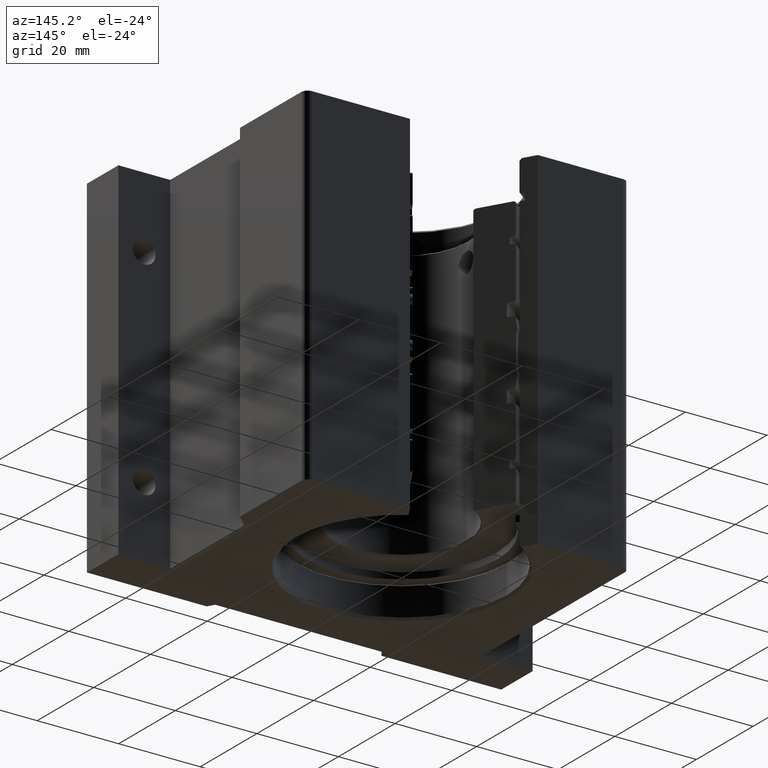
[diagram: clean part render]
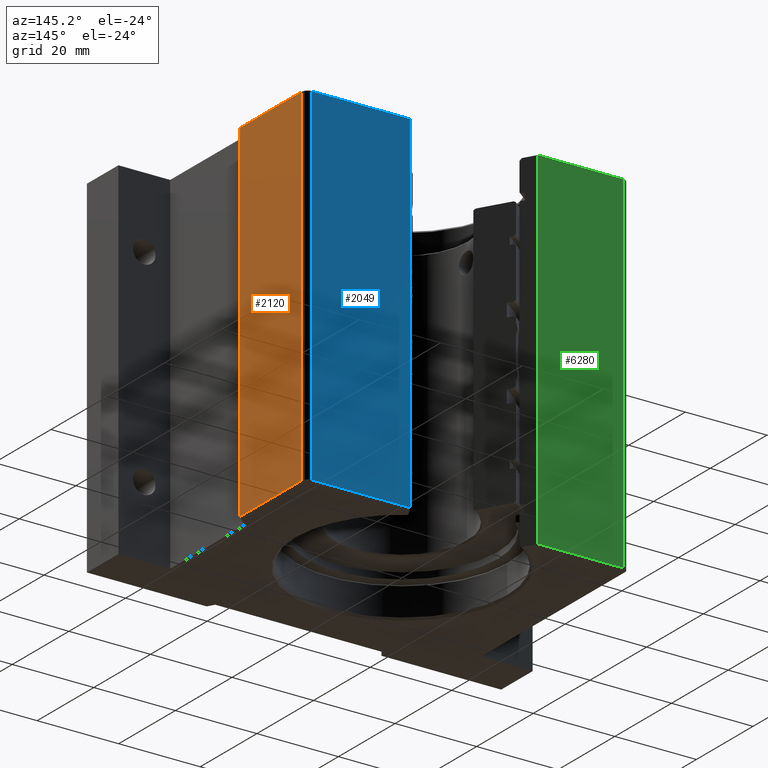
[diagram: same view with three faces highlighted in distinct colors, each labeled with its STEP entity id]
A machine part, auxiliary view with three faces highlighted in distinct colors.
Their STEP definitions:

[orange] entity #2120 — the highlighted planar face has unit normal (1, 0, 0).
#171 = VECTOR ( 'NONE', #6145, 39.37007874015748143 ) ;
#202 = LINE ( 'NONE', #1218, #3138 ) ;
#257 = EDGE_LOOP ( 'NONE', ( #3080, #2575, #5518, #3503 ) ) ;
#297 = DIRECTION ( 'NONE',  ( -0.000000000000000000, 1.000000000000000000, -0.000000000000000000 ) ) ;
#440 = CARTESIAN_POINT ( 'NONE',  ( 1.624999999999999778, 1.000000000000000000, -2.732006582075958256 ) ) ;
#593 = FACE_OUTER_BOUND ( 'NONE', #257, .T. ) ;
#625 = CARTESIAN_POINT ( 'NONE',  ( 1.624999999999999778, 0.08800000000000025857, 1.687500000000000000 ) ) ;
#741 = CARTESIAN_POINT ( 'NONE',  ( 1.624999999999999778, 0.9399999999999999467, 1.687500000000000000 ) ) ;
#1090 = VERTEX_POINT ( 'NONE', #625 ) ;
#1218 = CARTESIAN_POINT ( 'NONE',  ( 1.624999999999999778, 0.9399999999999999467, 1.687500000000000000 ) ) ;
#1596 = AXIS2_PLACEMENT_3D ( 'NONE', #440, #2825, #6119 ) ;
#1746 = VERTEX_POINT ( 'NONE', #3309 ) ;
#1843 = EDGE_CURVE ( 'NONE', #1746, #2697, #6996, .T. ) ;
#1862 = DIRECTION ( 'NONE',  ( 0.000000000000000000, -1.000000000000000000, 0.000000000000000000 ) ) ;
#1945 = VECTOR ( 'NONE', #1862, 39.37007874015748143 ) ;
#2120 = ADVANCED_FACE ( 'NONE', ( #593 ), #2276, .T. ) ;
#2268 = LINE ( 'NONE', #4514, #171 ) ;
#2276 = PLANE ( 'NONE',  #1596 ) ;
#2575 = ORIENTED_EDGE ( 'NONE', *, *, #2586, .T. ) ;
#2586 = EDGE_CURVE ( 'NONE', #1746, #4435, #202, .T. ) ;
#2697 = VERTEX_POINT ( 'NONE', #2889 ) ;
#2825 = DIRECTION ( 'NONE',  ( 1.000000000000000000, 0.000000000000000000, -0.000000000000000000 ) ) ;
#2841 = EDGE_CURVE ( 'NONE', #2697, #1090, #2268, .T. ) ;
#2889 = CARTESIAN_POINT ( 'NONE',  ( 1.624999999999999778, 0.08800000000000025857, -1.687500000000000000 ) ) ;
#2954 = DIRECTION ( 'NONE',  ( 0.000000000000000000, 0.000000000000000000, 1.000000000000000000 ) ) ;
#3080 = ORIENTED_EDGE ( 'NONE', *, *, #1843, .F. ) ;
#3138 = VECTOR ( 'NONE', #2954, 39.37007874015748143 ) ;
#3309 = CARTESIAN_POINT ( 'NONE',  ( 1.624999999999999778, 0.9399999999999999467, -1.687500000000000000 ) ) ;
#3503 = ORIENTED_EDGE ( 'NONE', *, *, #2841, .F. ) ;
#4190 = VECTOR ( 'NONE', #297, 39.37007874015748143 ) ;
#4435 = VERTEX_POINT ( 'NONE', #741 ) ;
#4514 = CARTESIAN_POINT ( 'NONE',  ( 1.624999999999999778, 0.08800000000000025857, -2.732006582075958256 ) ) ;
#5375 = LINE ( 'NONE', #5975, #4190 ) ;
#5518 = ORIENTED_EDGE ( 'NONE', *, *, #6847, .F. ) ;
#5975 = CARTESIAN_POINT ( 'NONE',  ( 1.624999999999999778, 1.000000000000000000, 1.687500000000000000 ) ) ;
#6119 = DIRECTION ( 'NONE',  ( -0.000000000000000000, 0.000000000000000000, -1.000000000000000000 ) ) ;
#6145 = DIRECTION ( 'NONE',  ( 0.000000000000000000, 0.000000000000000000, 1.000000000000000000 ) ) ;
#6399 = CARTESIAN_POINT ( 'NONE',  ( 1.624999999999999778, 1.000000000000000000, -1.687500000000000000 ) ) ;
#6847 = EDGE_CURVE ( 'NONE', #1090, #4435, #5375, .T. ) ;
#6996 = LINE ( 'NONE', #6399, #1945 ) ;

[blue] entity #2049 — the highlighted planar face has unit normal (0, -1, 0).
#127 = EDGE_CURVE ( 'NONE', #4089, #6066, #300, .T. ) ;
#300 = LINE ( 'NONE', #934, #3038 ) ;
#395 = ORIENTED_EDGE ( 'NONE', *, *, #127, .T. ) ;
#501 = CARTESIAN_POINT ( 'NONE',  ( 1.564999999999999725, 1.000000000000000000, -1.687500000000000000 ) ) ;
#776 = CARTESIAN_POINT ( 'NONE',  ( -2.099224542610511072E-16, 0.9999999999999996669, 1.687500000000000000 ) ) ;
#934 = CARTESIAN_POINT ( 'NONE',  ( 0.6177782725980928147, 1.000000000000000000, -1.687501968503936967 ) ) ;
#1031 = CARTESIAN_POINT ( 'NONE',  ( 0.6177782725980928147, 1.000000000000000000, -1.687500000000000000 ) ) ;
#1156 = VECTOR ( 'NONE', #3625, 39.37007874015748143 ) ;
#1345 = DIRECTION ( 'NONE',  ( -0.000000000000000000, -0.000000000000000000, -1.000000000000000000 ) ) ;
#1895 = LINE ( 'NONE', #776, #1156 ) ;
#2046 = VERTEX_POINT ( 'NONE', #5118 ) ;
#2049 = ADVANCED_FACE ( 'NONE', ( #2857 ), #5593, .F. ) ;
#2608 = DIRECTION ( 'NONE',  ( -0.000000000000000000, -0.000000000000000000, 1.000000000000000000 ) ) ;
#2857 = FACE_OUTER_BOUND ( 'NONE', #5301, .T. ) ;
#3038 = VECTOR ( 'NONE', #2608, 39.37007874015748143 ) ;
#3121 = EDGE_CURVE ( 'NONE', #4089, #7184, #3238, .T. ) ;
#3238 = LINE ( 'NONE', #7094, #4583 ) ;
#3261 = DIRECTION ( 'NONE',  ( 2.099224542610511318E-16, -1.000000000000000000, 0.000000000000000000 ) ) ;
#3440 = EDGE_CURVE ( 'NONE', #6066, #2046, #1895, .T. ) ;
#3624 = ORIENTED_EDGE ( 'NONE', *, *, #6322, .T. ) ;
#3625 = DIRECTION ( 'NONE',  ( 1.000000000000000000, 2.099224542610511565E-16, 0.000000000000000000 ) ) ;
#3918 = CARTESIAN_POINT ( 'NONE',  ( 0.6177782725980928147, 1.000000000000000000, 1.687500000000000000 ) ) ;
#3931 = DIRECTION ( 'NONE',  ( 1.000000000000000000, 2.099224542610511318E-16, 0.000000000000000000 ) ) ;
#3991 = LINE ( 'NONE', #4718, #6182 ) ;
#4089 = VERTEX_POINT ( 'NONE', #1031 ) ;
#4379 = ORIENTED_EDGE ( 'NONE', *, *, #3440, .T. ) ;
#4382 = DIRECTION ( 'NONE',  ( 1.000000000000000000, 2.099224542610511565E-16, 0.000000000000000000 ) ) ;
#4583 = VECTOR ( 'NONE', #4382, 39.37007874015748143 ) ;
#4718 = CARTESIAN_POINT ( 'NONE',  ( 1.564999999999999725, 1.000000000000000000, -1.687500000000000000 ) ) ;
#5049 = CARTESIAN_POINT ( 'NONE',  ( -2.099224542610511072E-16, 0.9999999999999996669, -1.687500000000000000 ) ) ;
#5118 = CARTESIAN_POINT ( 'NONE',  ( 1.564999999999999725, 1.000000000000000000, 1.687500000000000000 ) ) ;
#5301 = EDGE_LOOP ( 'NONE', ( #3624, #5692, #395, #4379 ) ) ;
#5593 = PLANE ( 'NONE',  #6683 ) ;
#5692 = ORIENTED_EDGE ( 'NONE', *, *, #3121, .F. ) ;
#6066 = VERTEX_POINT ( 'NONE', #3918 ) ;
#6182 = VECTOR ( 'NONE', #1345, 39.37007874015748143 ) ;
#6322 = EDGE_CURVE ( 'NONE', #2046, #7184, #3991, .T. ) ;
#6683 = AXIS2_PLACEMENT_3D ( 'NONE', #5049, #3261, #3931 ) ;
#7094 = CARTESIAN_POINT ( 'NONE',  ( -2.099224542610511072E-16, 0.9999999999999996669, -1.687500000000000000 ) ) ;
#7184 = VERTEX_POINT ( 'NONE', #501 ) ;

[green] entity #6280 — the highlighted planar face has unit normal (-0, -1, 0).
#303 = DIRECTION ( 'NONE',  ( 1.000000000000000000, -2.099224542610511565E-16, 0.000000000000000000 ) ) ;
#407 = VECTOR ( 'NONE', #2710, 39.37007874015748143 ) ;
#442 = LINE ( 'NONE', #3658, #407 ) ;
#535 = VECTOR ( 'NONE', #7345, 39.37007874015748143 ) ;
#540 = EDGE_CURVE ( 'NONE', #3247, #5856, #442, .T. ) ;
#652 = ORIENTED_EDGE ( 'NONE', *, *, #1041, .T. ) ;
#753 = PLANE ( 'NONE',  #3346 ) ;
#888 = VERTEX_POINT ( 'NONE', #3100 ) ;
#1041 = EDGE_CURVE ( 'NONE', #888, #3247, #6745, .T. ) ;
#1080 = VECTOR ( 'NONE', #6427, 39.37007874015748143 ) ;
#1192 = CARTESIAN_POINT ( 'NONE',  ( -1.439999999999999947, 1.000000000000000000, 1.687500000000000000 ) ) ;
#1417 = CARTESIAN_POINT ( 'NONE',  ( 2.099224542610511072E-16, 0.9999999999999996669, -1.687500000000000000 ) ) ;
#2009 = CARTESIAN_POINT ( 'NONE',  ( -0.6177782725980928147, 1.000000000000000000, -1.687500000000000000 ) ) ;
#2235 = CARTESIAN_POINT ( 'NONE',  ( -1.439999999999999947, 1.000000000000000000, -1.687500000000000000 ) ) ;
#2440 = VECTOR ( 'NONE', #303, 39.37007874015748143 ) ;
#2441 = ORIENTED_EDGE ( 'NONE', *, *, #3052, .F. ) ;
#2710 = DIRECTION ( 'NONE',  ( 1.000000000000000000, -2.099224542610511565E-16, 0.000000000000000000 ) ) ;
#3052 = EDGE_CURVE ( 'NONE', #888, #3540, #7014, .T. ) ;
#3100 = CARTESIAN_POINT ( 'NONE',  ( -1.439999999999999947, 1.000000000000000000, -1.687500000000000000 ) ) ;
#3247 = VERTEX_POINT ( 'NONE', #1192 ) ;
#3346 = AXIS2_PLACEMENT_3D ( 'NONE', #6350, #5687, #4578 ) ;
#3431 = FACE_OUTER_BOUND ( 'NONE', #6246, .T. ) ;
#3540 = VERTEX_POINT ( 'NONE', #2009 ) ;
#3658 = CARTESIAN_POINT ( 'NONE',  ( 2.099224542610511072E-16, 0.9999999999999996669, 1.687500000000000000 ) ) ;
#4578 = DIRECTION ( 'NONE',  ( 1.000000000000000000, -2.099224542610511318E-16, 0.000000000000000000 ) ) ;
#4660 = LINE ( 'NONE', #4697, #1080 ) ;
#4682 = ORIENTED_EDGE ( 'NONE', *, *, #4924, .F. ) ;
#4697 = CARTESIAN_POINT ( 'NONE',  ( -0.6177782725980928147, 1.000000000000000000, -1.687501968503936967 ) ) ;
#4924 = EDGE_CURVE ( 'NONE', #3540, #5856, #4660, .T. ) ;
#5091 = CARTESIAN_POINT ( 'NONE',  ( -0.6177782725980928147, 1.000000000000000000, 1.687500000000000000 ) ) ;
#5687 = DIRECTION ( 'NONE',  ( -2.099224542610511318E-16, -1.000000000000000000, 0.000000000000000000 ) ) ;
#5845 = ORIENTED_EDGE ( 'NONE', *, *, #540, .T. ) ;
#5856 = VERTEX_POINT ( 'NONE', #5091 ) ;
#6246 = EDGE_LOOP ( 'NONE', ( #2441, #652, #5845, #4682 ) ) ;
#6280 = ADVANCED_FACE ( 'NONE', ( #3431 ), #753, .F. ) ;
#6350 = CARTESIAN_POINT ( 'NONE',  ( 2.099224542610511072E-16, 0.9999999999999996669, -1.687500000000000000 ) ) ;
#6427 = DIRECTION ( 'NONE',  ( -0.000000000000000000, -0.000000000000000000, 1.000000000000000000 ) ) ;
#6745 = LINE ( 'NONE', #2235, #535 ) ;
#7014 = LINE ( 'NONE', #1417, #2440 ) ;
#7345 = DIRECTION ( 'NONE',  ( 0.000000000000000000, 0.000000000000000000, 1.000000000000000000 ) ) ;